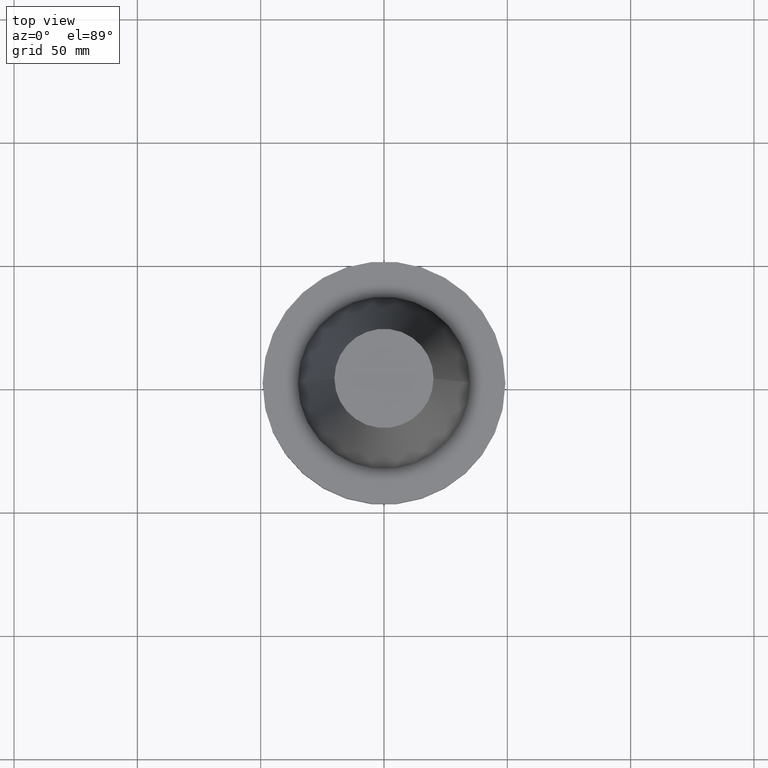
[diagram: clean part render]
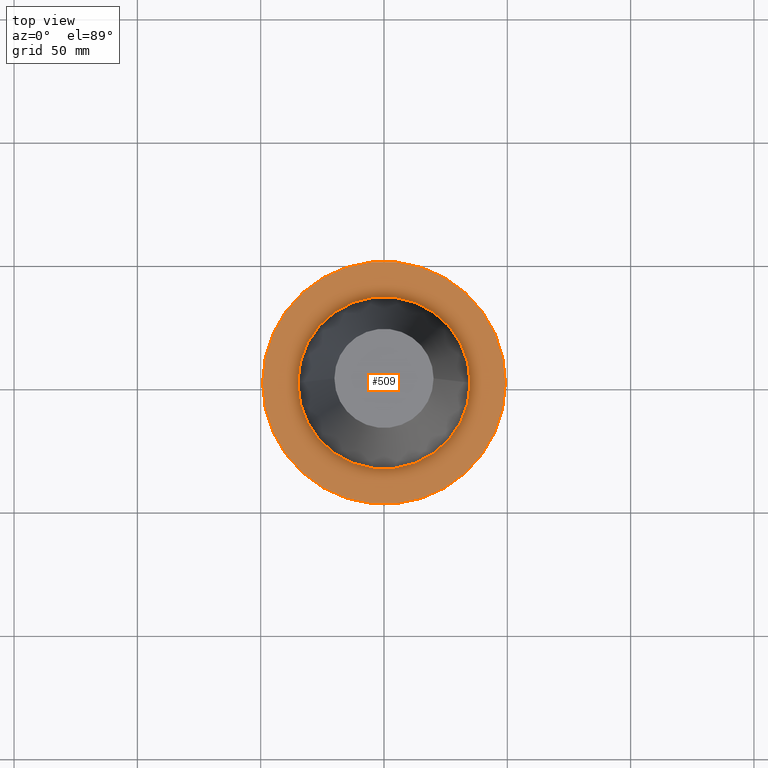
[diagram: same view with one face highlighted and labeled with its STEP entity id]
A machine part, top view. The second image highlights one B-rep face of the part: STEP entity #509.
In plain terms, the highlighted planar face has unit normal (0, 0, -1).
Its self-contained STEP definition (entity closure, byte-faithful):
#39 = CIRCLE ( 'NONE', #444, 49.21499999999999631 ) ;
#40 = CIRCLE ( 'NONE', #473, 34.92499999999999005 ) ;
#53 = EDGE_LOOP ( 'NONE', ( #688, #1050 ) ) ;
#93 = AXIS2_PLACEMENT_3D ( 'NONE', #461, #374, #717 ) ;
#171 = CARTESIAN_POINT ( 'NONE',  ( 0.000000000000000000, 49.21499999999999631, -1.499999999999992895 ) ) ;
#174 = FACE_OUTER_BOUND ( 'NONE', #875, .T. ) ;
#290 = AXIS2_PLACEMENT_3D ( 'NONE', #451, #965, #365 ) ;
#323 = CARTESIAN_POINT ( 'NONE',  ( 34.92499999999999005, 0.000000000000000000, -1.499999999999987566 ) ) ;
#365 = DIRECTION ( 'NONE',  ( 1.000000000000000000, 0.000000000000000000, 0.000000000000000000 ) ) ;
#372 = DIRECTION ( 'NONE',  ( 1.000000000000000000, 0.000000000000000000, 0.000000000000000000 ) ) ;
#374 = DIRECTION ( 'NONE',  ( -0.000000000000000000, -0.000000000000000000, 1.000000000000000000 ) ) ;
#408 = DIRECTION ( 'NONE',  ( 1.000000000000000000, 0.000000000000000000, 0.000000000000000000 ) ) ;
#427 = DIRECTION ( 'NONE',  ( -0.000000000000000000, -0.000000000000000000, 1.000000000000000000 ) ) ;
#444 = AXIS2_PLACEMENT_3D ( 'NONE', #670, #427, #408 ) ;
#447 = CIRCLE ( 'NONE', #290, 49.21499999999999631 ) ;
#451 = CARTESIAN_POINT ( 'NONE',  ( 0.000000000000000000, 0.000000000000000000, -1.499999999999987566 ) ) ;
#461 = CARTESIAN_POINT ( 'NONE',  ( 0.000000000000000000, 0.000000000000000000, -1.499999999999987566 ) ) ;
#473 = AXIS2_PLACEMENT_3D ( 'NONE', #702, #632, #372 ) ;
#474 = VERTEX_POINT ( 'NONE', #778 ) ;
#502 = FACE_BOUND ( 'NONE', #53, .T. ) ;
#504 = DIRECTION ( 'NONE',  ( -1.000000000000000000, 0.000000000000000000, -0.000000000000000000 ) ) ;
#509 = ADVANCED_FACE ( 'NONE', ( #502, #174 ), #930, .F. ) ;
#528 = AXIS2_PLACEMENT_3D ( 'NONE', #171, #685, #504 ) ;
#632 = DIRECTION ( 'NONE',  ( -0.000000000000000000, -0.000000000000000000, 1.000000000000000000 ) ) ;
#670 = CARTESIAN_POINT ( 'NONE',  ( 0.000000000000000000, 0.000000000000000000, -1.499999999999987566 ) ) ;
#676 = EDGE_CURVE ( 'NONE', #474, #894, #1014, .T. ) ;
#685 = DIRECTION ( 'NONE',  ( 0.000000000000000000, 0.000000000000000000, -1.000000000000000000 ) ) ;
#688 = ORIENTED_EDGE ( 'NONE', *, *, #970, .F. ) ;
#696 = ORIENTED_EDGE ( 'NONE', *, *, #1006, .T. ) ;
#698 = ORIENTED_EDGE ( 'NONE', *, *, #730, .T. ) ;
#702 = CARTESIAN_POINT ( 'NONE',  ( 0.000000000000000000, 0.000000000000000000, -1.499999999999987566 ) ) ;
#717 = DIRECTION ( 'NONE',  ( 1.000000000000000000, 0.000000000000000000, 0.000000000000000000 ) ) ;
#730 = EDGE_CURVE ( 'NONE', #807, #747, #39, .T. ) ;
#747 = VERTEX_POINT ( 'NONE', #768 ) ;
#768 = CARTESIAN_POINT ( 'NONE',  ( -49.21499999999999631, 6.027099222003697826E-15, -1.499999999999987566 ) ) ;
#778 = CARTESIAN_POINT ( 'NONE',  ( -34.92499999999999005, 4.277078946022130098E-15, -1.499999999999987566 ) ) ;
#807 = VERTEX_POINT ( 'NONE', #901 ) ;
#875 = EDGE_LOOP ( 'NONE', ( #698, #696 ) ) ;
#894 = VERTEX_POINT ( 'NONE', #323 ) ;
#901 = CARTESIAN_POINT ( 'NONE',  ( 49.21499999999999631, 0.000000000000000000, -1.499999999999987566 ) ) ;
#930 = PLANE ( 'NONE',  #528 ) ;
#965 = DIRECTION ( 'NONE',  ( -0.000000000000000000, -0.000000000000000000, 1.000000000000000000 ) ) ;
#970 = EDGE_CURVE ( 'NONE', #894, #474, #40, .T. ) ;
#1006 = EDGE_CURVE ( 'NONE', #747, #807, #447, .T. ) ;
#1014 = CIRCLE ( 'NONE', #93, 34.92499999999999005 ) ;
#1050 = ORIENTED_EDGE ( 'NONE', *, *, #676, .F. ) ;